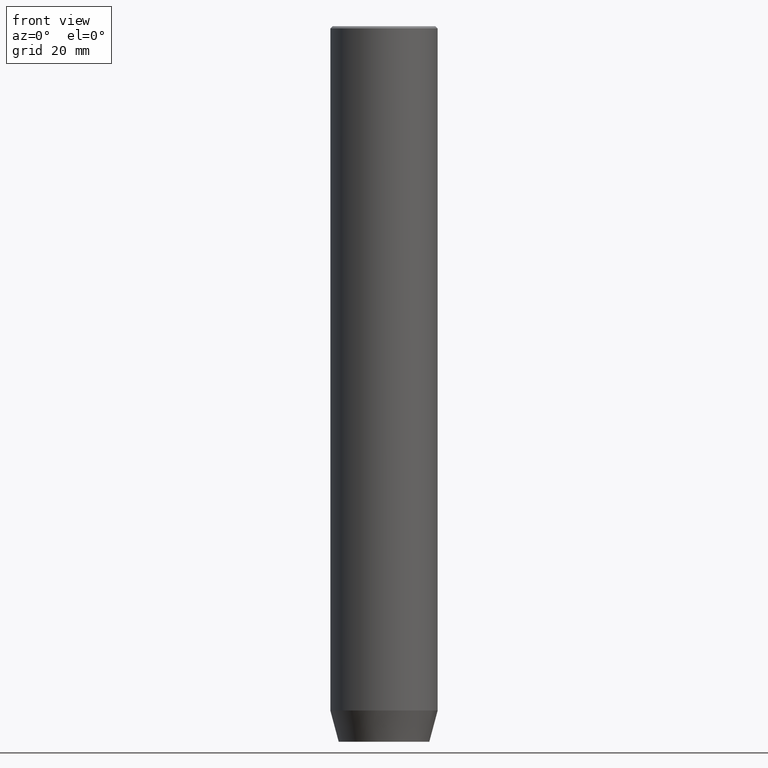
[diagram: clean part render]
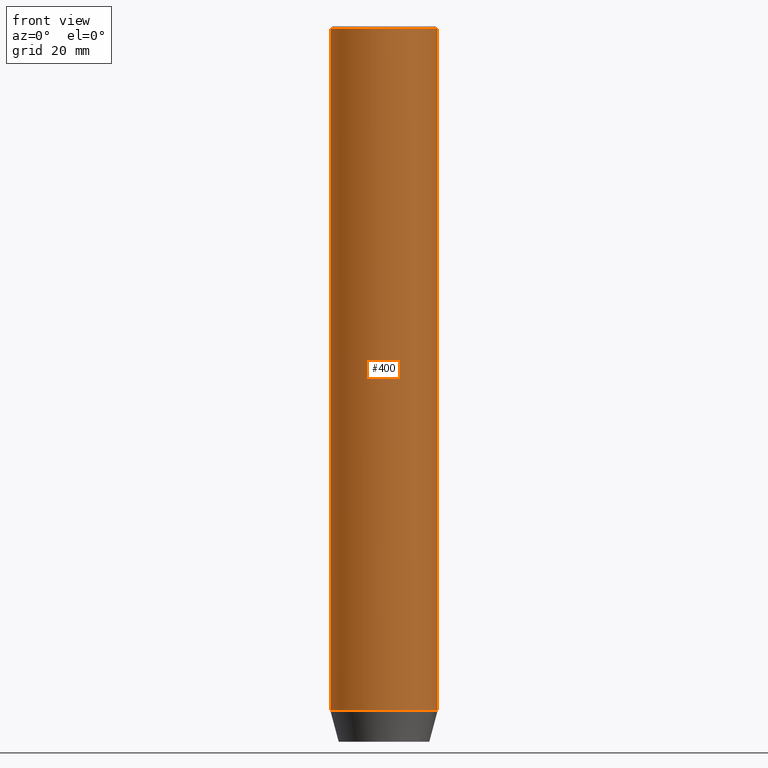
[diagram: same view with one face highlighted and labeled with its STEP entity id]
A machine part, front view. The second image highlights one B-rep face of the part: STEP entity #400.
In plain terms, the highlighted cylindrical surface (partial cylindrical patch) has radius 12 mm, axis along (-0, -0, 1).
Its self-contained STEP definition (entity closure, byte-faithful):
#54 = ORIENTED_EDGE ( 'NONE', *, *, #112, .T. ) ;
#83 = ORIENTED_EDGE ( 'NONE', *, *, #278, .T. ) ;
#88 = CARTESIAN_POINT ( 'NONE',  ( 12.00000000000000000, 0.000000000000000000, -0.4999999999999779066 ) ) ;
#97 = VECTOR ( 'NONE', #158, 1000.000000000000000 ) ;
#112 = EDGE_CURVE ( 'NONE', #558, #458, #414, .T. ) ;
#115 = EDGE_LOOP ( 'NONE', ( #526, #54, #174, #83 ) ) ;
#137 = DIRECTION ( 'NONE',  ( -0.000000000000000000, -0.000000000000000000, 1.000000000000000000 ) ) ;
#151 = LINE ( 'NONE', #428, #97 ) ;
#158 = DIRECTION ( 'NONE',  ( -0.000000000000000000, -0.000000000000000000, 1.000000000000000000 ) ) ;
#166 = DIRECTION ( 'NONE',  ( -0.000000000000000000, -0.000000000000000000, 1.000000000000000000 ) ) ;
#174 = ORIENTED_EDGE ( 'NONE', *, *, #237, .T. ) ;
#186 = VERTEX_POINT ( 'NONE', #579 ) ;
#200 = LINE ( 'NONE', #468, #538 ) ;
#237 = EDGE_CURVE ( 'NONE', #458, #334, #151, .T. ) ;
#266 = DIRECTION ( 'NONE',  ( 1.000000000000000000, 0.000000000000000000, 0.000000000000000000 ) ) ;
#278 = EDGE_CURVE ( 'NONE', #334, #186, #356, .T. ) ;
#287 = CARTESIAN_POINT ( 'NONE',  ( 12.00000000000000000, 0.000000000000000000, -152.9999999999999716 ) ) ;
#295 = CARTESIAN_POINT ( 'NONE',  ( 0.000000000000000000, 0.000000000000000000, -152.9999999999999716 ) ) ;
#334 = VERTEX_POINT ( 'NONE', #88 ) ;
#356 = CIRCLE ( 'NONE', #479, 12.00000000000000000 ) ;
#362 = FACE_OUTER_BOUND ( 'NONE', #115, .T. ) ;
#374 = CARTESIAN_POINT ( 'NONE',  ( 0.000000000000000000, 0.000000000000000000, -0.4999999999999779066 ) ) ;
#383 = DIRECTION ( 'NONE',  ( -0.000000000000000000, -0.000000000000000000, 1.000000000000000000 ) ) ;
#400 = ADVANCED_FACE ( 'NONE', ( #362 ), #550, .T. ) ;
#414 = CIRCLE ( 'NONE', #495, 12.00000000000000000 ) ;
#418 = DIRECTION ( 'NONE',  ( 0.000000000000000000, 0.000000000000000000, -1.000000000000000000 ) ) ;
#427 = CARTESIAN_POINT ( 'NONE',  ( -12.00000000000000000, 1.469576158976823947E-15, -152.9999999999999716 ) ) ;
#428 = CARTESIAN_POINT ( 'NONE',  ( 12.00000000000000000, 0.000000000000000000, 0.000000000000000000 ) ) ;
#442 = DIRECTION ( 'NONE',  ( 1.000000000000000000, 0.000000000000000000, 0.000000000000000000 ) ) ;
#458 = VERTEX_POINT ( 'NONE', #287 ) ;
#468 = CARTESIAN_POINT ( 'NONE',  ( -12.00000000000000000, 1.469576158976823947E-15, 0.000000000000000000 ) ) ;
#479 = AXIS2_PLACEMENT_3D ( 'NONE', #374, #418, #513 ) ;
#488 = EDGE_CURVE ( 'NONE', #558, #186, #200, .T. ) ;
#495 = AXIS2_PLACEMENT_3D ( 'NONE', #295, #166, #442 ) ;
#497 = AXIS2_PLACEMENT_3D ( 'NONE', #517, #137, #266 ) ;
#513 = DIRECTION ( 'NONE',  ( 1.000000000000000000, 0.000000000000000000, 0.000000000000000000 ) ) ;
#517 = CARTESIAN_POINT ( 'NONE',  ( 0.000000000000000000, 0.000000000000000000, 0.000000000000000000 ) ) ;
#526 = ORIENTED_EDGE ( 'NONE', *, *, #488, .F. ) ;
#538 = VECTOR ( 'NONE', #383, 1000.000000000000000 ) ;
#550 = CYLINDRICAL_SURFACE ( 'NONE', #497, 12.00000000000000000 ) ;
#558 = VERTEX_POINT ( 'NONE', #427 ) ;
#579 = CARTESIAN_POINT ( 'NONE',  ( -12.00000000000000000, 1.469576158976823947E-15, -0.4999999999999779066 ) ) ;